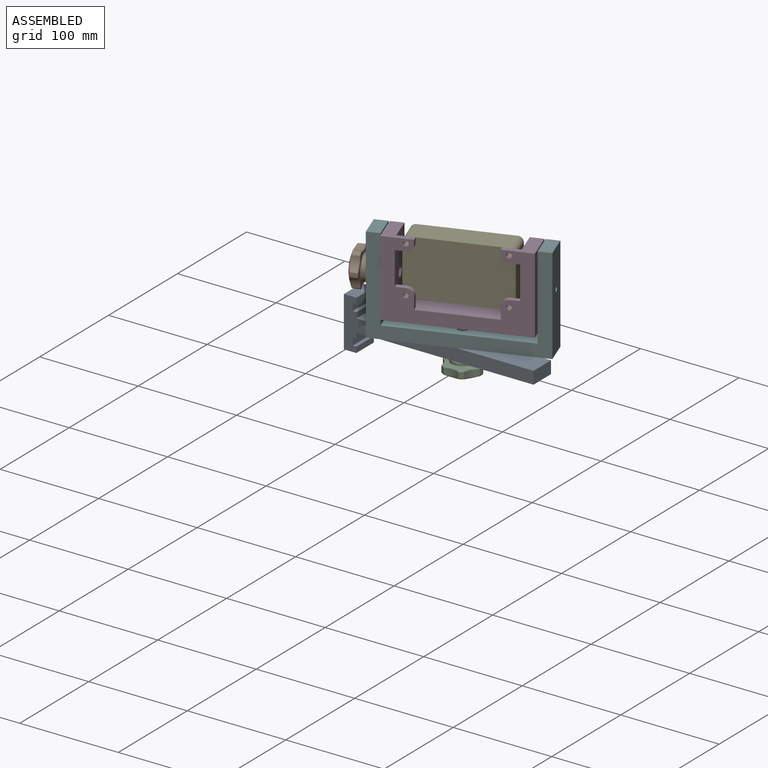
[diagram: assembled view]
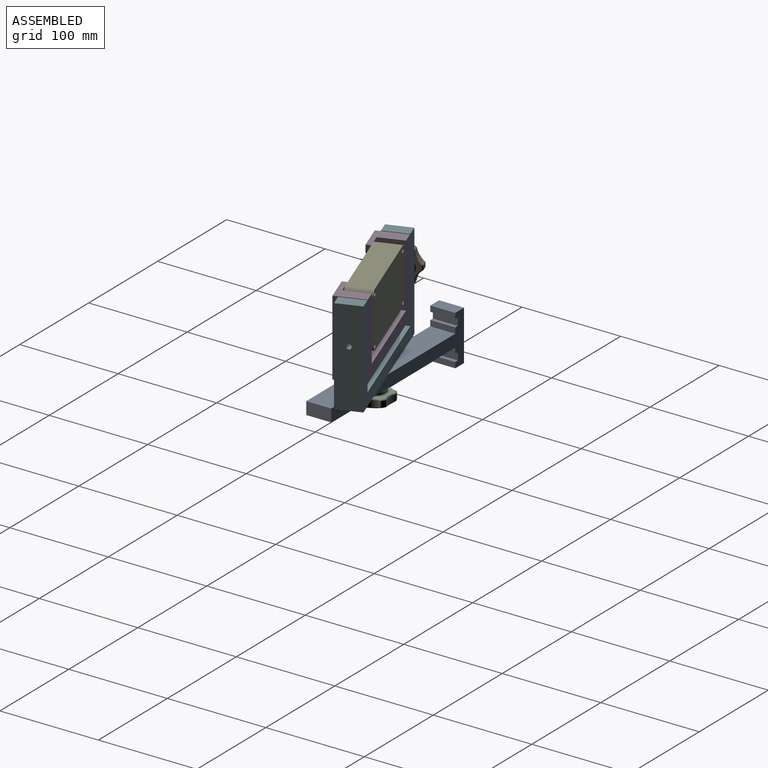
[diagram: assembled view, second angle]
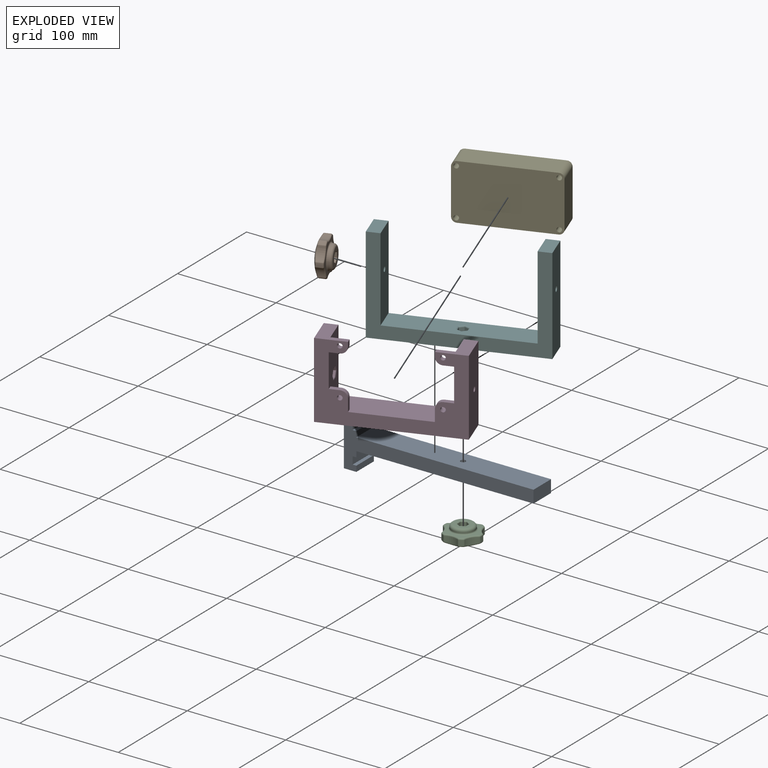
[diagram: exploded view]
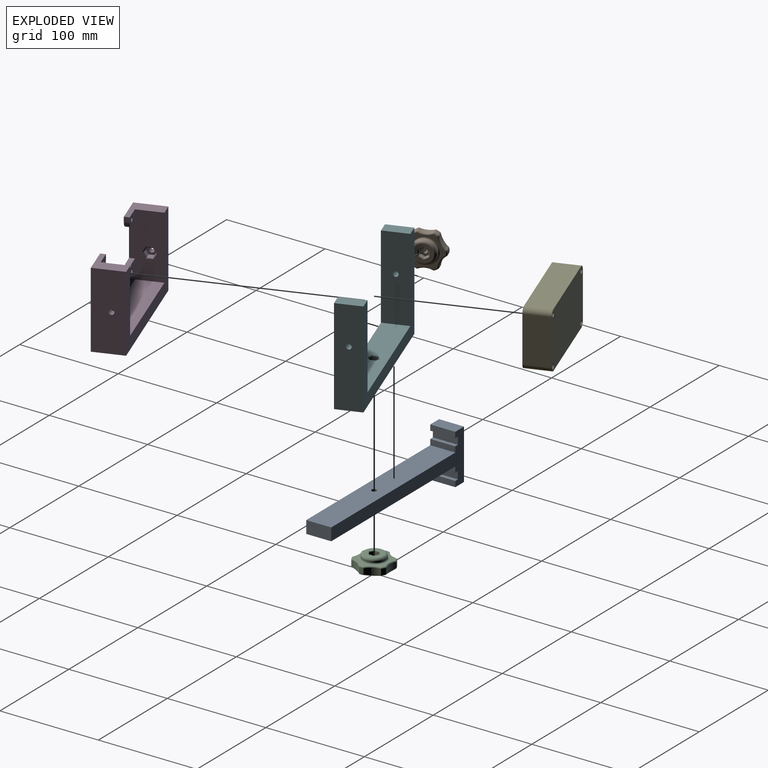
[diagram: exploded view, second angle]
ASSEMBLY  parts=6 mates=7
PART A: 19 faces, bbox 192.6x50.8x25.4 mm
  f0: plane 179.88x25.4mm, normal (0,-1,0), area 4548.6mm2, adj f1,f15,f16,f17,f18
  f1: plane 25.4x12.7mm, normal (1,0,0), area 322.6mm2, adj f0,f2,f16,f17
  f2: plane 179.88x25.4mm, normal (0,1,0), area 4548.6mm2, adj f1,f3,f16,f17,f18
  f3: plane 25.4x5.72mm, normal (1,0,0), area 145.2mm2, adj f2,f4,f16,f17
  f4: plane 25.4x3.81mm, normal (0,1,0), area 96.8mm2, adj f3,f5,f16,f17
  f5: plane 25.4x7.62mm, normal (1,0,0), area 193.5mm2, adj f4,f6,f16,f17
  f6: plane 25.4x3.81mm, normal (0,-1,0), area 96.8mm2, adj f5,f7,f16,f17
  f7: plane 25.4x5.72mm, normal (1,0,0), area 145.2mm2, adj f6,f8,f16,f17
  f8: plane 25.4x12.7mm, normal (0,1,0), area 322.6mm2, adj f7,f9,f16,f17
  f9: plane 50.8x25.4mm, normal (-1,0,0), area 1290.3mm2, adj f8,f10,f16,f17
  f10: plane 25.4x12.7mm, normal (0,-1,0), area 322.6mm2, adj f9,f11,f16,f17
  f11: plane 25.4x5.72mm, normal (1,0,0), area 145.2mm2, adj f10,f12,f16,f17
  f12: plane 25.4x3.81mm, normal (0,1,0), area 96.8mm2, adj f11,f13,f16,f17
  f13: plane 25.4x7.62mm, normal (1,0,0), area 193.5mm2, adj f12,f14,f16,f17
  f14: plane 25.4x3.81mm, normal (0,-1,0), area 96.8mm2, adj f13,f15,f16,f17
  f15: plane 25.4x5.72mm, normal (1,0,0), area 145.2mm2, adj f0,f14,f16,f17
  f16: plane 192.58x50.8mm, normal (0,0,1), area 2871.5mm2, adj f0,f1,f2,f3,f4,f5,f6,f7
  f17: plane 192.58x50.8mm, normal (0,0,-1), area 2871.5mm2, adj f0,f1,f2,f3,f4,f5,f6,f7
  f18: cylinder r=2.54mm len=12.7mm, axis (0,1,0), area 202.7mm2, adj f0,f2
PART B: 94 faces, bbox 40.3x15.2x36.6 mm
  f0: plane 5.04x4.32mm, normal (1,0,0), area 21.8mm2, adj f1,f5,f25,f29
  f1: plane 4.37x4.32mm, normal (0.5,0,-0.87), area 21.8mm2, adj f0,f2,f25,f27
  f2: plane 4.37x4.32mm, normal (-0.5,0,-0.87), area 21.8mm2, adj f1,f3,f25,f26
  f3: plane 5.04x4.32mm, normal (-1,0,0), area 21.8mm2, adj f2,f4,f25,f28
  f4: plane 4.37x4.32mm, normal (-0.5,0,0.87), area 21.8mm2, adj f3,f5,f25,f30
  f5: plane 4.37x4.32mm, normal (0.5,0,0.87), area 21.8mm2, adj f0,f4,f25,f31
  f6: cylinder r=15.88mm len=13.47mm, axis (0,1,0), area 85.2mm2, adj f78,f87,f88,f92
  f7: cylinder r=19.05mm len=5.43mm, axis (0,1,0), area 21.2mm2, adj f76,f77,f86,f87
  f8: cylinder r=15.88mm len=11.66mm, axis (0,1,0), area 85.2mm2, adj f66,f67,f75,f76
  f9: cylinder r=19.05mm len=5.43mm, axis (0,1,0), area 21.2mm2, adj f56,f57,f65,f66
  f10: cylinder r=15.88mm len=11.66mm, axis (0,1,0), area 85.2mm2, adj f46,f47,f55,f56
  f11: cylinder r=19.05mm len=5.43mm, axis (0,1,0), area 21.2mm2, adj f36,f37,f45,f46
  f12: cylinder r=15.88mm len=13.47mm, axis (0,1,0), area 85.2mm2, adj f33,f36,f39,f40
  f13: cylinder r=19.05mm len=5.43mm, axis (0,1,0), area 21.2mm2, adj f38,f39,f49,f50
  f14: cylinder r=15.88mm len=11.66mm, axis (0,1,0), area 85.2mm2, adj f48,f49,f59,f60
  f15: cylinder r=19.05mm len=5.43mm, axis (0,1,0), area 21.2mm2, adj f58,f59,f69,f70
  f16: cylinder r=15.88mm len=11.66mm, axis (0,1,0), area 85.2mm2, adj f68,f69,f80,f81
  f17: cylinder r=19.05mm len=5.43mm, axis (0,1,0), area 21.2mm2, adj f79,f80,f88,f89
  f18: plane 35.56x32.45mm, normal (0,1,0), area 299.9mm2, adj f32,f33,f37,f38,f47,f48,f57,f58
  f19: plane 22.45x22.45mm, normal (0,-1,0), area 379.3mm2, adj f24,f93
  f20: cone r=11.43mm half-angle=71.6deg, axis (0,1,0), area 445.8mm2, adj f40,f45,f50,f55,f60,f65,f70,f75
  f21: cylinder r=11.43mm len=22.86mm, axis (0,-1,0), area 91.2mm2, adj f23,f32
  f22: plane 17.78x17.78mm, normal (0,1,0), area 157.2mm2, adj f23,f26,f27,f28,f29,f30,f31
  f23: torus R=8.89mm, axis (0,-1,0), area 263.4mm2, adj f21,f22
  f24: cylinder r=2.29mm len=10.16mm, axis (0,1,0), area 145.9mm2, adj f19,f25
  f25: plane 10.08x8.73mm, normal (0,1,0), area 49.6mm2, adj f0,f1,f2,f3,f4,f5,f24
  f26: cylinder r=0.76mm len=5.51mm, axis (0.87,0,-0.5), area 6.6mm2, adj f2,f22,f27,f28
  f27: cylinder r=0.76mm len=5.51mm, axis (0.87,0,0.5), area 6.6mm2, adj f1,f22,f26,f29
  f28: cylinder r=0.76mm len=5.92mm, axis (0,0,-1), area 6.6mm2, adj f3,f22,f26,f30
  f29: cylinder r=0.76mm len=5.92mm, axis (0,0,1), area 6.6mm2, adj f0,f22,f27,f31
  f30: cylinder r=0.76mm len=5.51mm, axis (-0.87,0,-0.5), area 6.6mm2, adj f4,f22,f28,f31
  f31: cylinder r=0.76mm len=5.51mm, axis (-0.87,0,0.5), area 6.6mm2, adj f5,f22,f29,f30
  f32: torus R=12.7mm, axis (0,-1,0), area 149.1mm2, adj f18,f21
  f33: torus R=17.14mm, axis (0,-1,0), area 28.6mm2, adj f12,f18,f34,f35
  f34: sphere r=1.27mm, area 1.4mm2, adj f33,f36,f37
  f35: sphere r=1.27mm, area 1.4mm2, adj f33,f38,f39
  f36: cylinder r=1.27mm len=5.43mm, axis (0,-1,0), area 5.9mm2, adj f11,f12,f34,f41
  f37: torus R=17.78mm, axis (0,-1,0), area 7.6mm2, adj f11,f18,f34,f42
  f38: torus R=17.78mm, axis (0,-1,0), area 7.6mm2, adj f13,f18,f35,f43
  f39: cylinder r=1.27mm len=5.43mm, axis (0,-1,0), area 5.9mm2, adj f12,f13,f35,f44
  f40: bspline ~17.57x3.27mm, area 24.2mm2, adj f12,f20,f41,f44
  f41: sphere r=1.27mm, area 1.2mm2, adj f36,f40,f45
  f42: sphere r=1.27mm, area 1mm2, adj f37,f46,f47
  f43: sphere r=1.27mm, area 1mm2, adj f38,f48,f49
  f44: sphere r=1.27mm, area 0.9mm2, adj f39,f40,f50
  f45: torus R=17.78mm, axis (0,1,0), area 6.1mm2, adj f11,f20,f41,f51
  f46: cylinder r=1.27mm len=5.43mm, axis (0,-1,0), area 5.9mm2, adj f10,f11,f42,f51
  f47: torus R=17.14mm, axis (0,-1,0), area 28.6mm2, adj f10,f18,f42,f52
  f48: torus R=17.14mm, axis (0,-1,0), area 28.6mm2, adj f14,f18,f43,f53
  f49: cylinder r=1.27mm len=5.43mm, axis (0,-1,0), area 5.9mm2, adj f13,f14,f43,f54
  f50: torus R=17.78mm, axis (0,1,0), area 6.1mm2, adj f13,f20,f44,f54
  f51: sphere r=1.27mm, area 0.9mm2, adj f45,f46,f55
  f52: sphere r=1.27mm, area 1mm2, adj f47,f56,f57
  f53: sphere r=1.27mm, area 1mm2, adj f48,f58,f59
  f54: sphere r=1.27mm, area 1.1mm2, adj f49,f50,f60
  f55: bspline ~15.15x9.56mm, area 24.2mm2, adj f10,f20,f51,f61
  f56: cylinder r=1.27mm len=5.43mm, axis (0,-1,0), area 5.9mm2, adj f9,f10,f52,f61
  f57: torus R=17.78mm, axis (0,-1,0), area 7.6mm2, adj f9,f18,f52,f62
  f58: torus R=17.78mm, axis (0,-1,0), area 7.6mm2, adj f15,f18,f53,f63
  f59: cylinder r=1.27mm len=5.43mm, axis (0,-1,0), area 5.9mm2, adj f14,f15,f53,f64
  f60: bspline ~15.45x9.06mm, area 24.2mm2, adj f14,f20,f54,f64
  f61: sphere r=1.27mm, area 0.8mm2, adj f55,f56,f65
  f62: sphere r=1.27mm, area 1mm2, adj f57,f66,f67
  f63: sphere r=1.27mm, area 1.4mm2, adj f58,f68,f69
  f64: sphere r=1.27mm, area 1.1mm2, adj f59,f60,f70
  f65: torus R=17.78mm, axis (0,1,0), area 6.1mm2, adj f9,f20,f61,f71
  f66: cylinder r=1.27mm len=5.43mm, axis (0,-1,0), area 5.9mm2, adj f8,f9,f62,f71
  f67: torus R=17.14mm, axis (0,-1,0), area 28.6mm2, adj f8,f18,f62,f72
  f68: torus R=17.14mm, axis (0,-1,0), area 28.6mm2, adj f16,f18,f63,f73
  f69: cylinder r=1.27mm len=5.43mm, axis (0,-1,0), area 5.9mm2, adj f15,f16,f63,f74
  f70: torus R=17.78mm, axis (0,1,0), area 6.1mm2, adj f15,f20,f64,f74
  f71: sphere r=1.27mm, area 0.8mm2, adj f65,f66,f75
  f72: sphere r=1.27mm, area 1mm2, adj f67,f76,f77
  f73: sphere r=1.27mm, area 1.4mm2, adj f68,f79,f80
  f74: sphere r=1.27mm, area 1mm2, adj f69,f70,f81
  f75: bspline ~15.45x9.06mm, area 24.2mm2, adj f8,f20,f71,f82
  f76: cylinder r=1.27mm len=5.43mm, axis (0,-1,0), area 5.9mm2, adj f7,f8,f72,f82
  f77: torus R=17.78mm, axis (0,-1,0), area 7.6mm2, adj f7,f18,f72,f83
  f78: torus R=17.14mm, axis (0,-1,0), area 28.6mm2, adj f6,f18,f83,f84
  f79: torus R=17.78mm, axis (0,-1,0), area 7.6mm2, adj f17,f18,f73,f84
  f80: cylinder r=1.27mm len=5.43mm, axis (0,-1,0), area 5.9mm2, adj f16,f17,f73,f85
  f81: bspline ~15.15x9.56mm, area 24.2mm2, adj f16,f20,f74,f85
  f82: sphere r=1.27mm, area 0.9mm2, adj f75,f76,f86
  f83: sphere r=1.27mm, area 1.4mm2, adj f77,f78,f87
  f84: sphere r=1.27mm, area 1.4mm2, adj f78,f79,f88
  f85: sphere r=1.27mm, area 0.9mm2, adj f80,f81,f89
  f86: torus R=17.78mm, axis (0,1,0), area 6.1mm2, adj f7,f20,f82,f90
  f87: cylinder r=1.27mm len=5.43mm, axis (0,-1,0), area 5.9mm2, adj f6,f7,f83,f90
  f88: cylinder r=1.27mm len=5.43mm, axis (0,-1,0), area 5.9mm2, adj f6,f17,f84,f91
  f89: torus R=17.78mm, axis (0,1,0), area 6.1mm2, adj f17,f20,f85,f91
  f90: sphere r=1.27mm, area 0.9mm2, adj f86,f87,f92
  f91: sphere r=1.27mm, area 1.2mm2, adj f88,f89,f92
  f92: bspline ~17.57x3.27mm, area 24.2mm2, adj f6,f20,f90,f91
  f93: torus R=11.22mm, axis (0,-1,0), area 29.3mm2, adj f19,f20
PART C: same geometry as B
PART D: 58 faces, bbox 133.4x77x30.5 mm
  f0: plane 64.26x30.48mm, normal (-1,0,0), area 1693.2mm2, adj f1,f7,f8,f9,f11,f20,f21,f28
  f1: plane 108.03x30.48mm, normal (0,1,0), area 3124.5mm2, adj f0,f2,f8,f11,f12,f23,f28,f29
  f2: plane 64.26x30.48mm, normal (1,0,0), area 1693.2mm2, adj f1,f3,f8,f10,f14,f15,f28,f29
  f3: plane 30.48x29.25mm, normal (0,1,0), area 471.2mm2, adj f2,f4,f8,f10,f17,f28
  f4: plane 76.96x30.48mm, normal (-1,0,0), area 2325.5mm2, adj f3,f5,f8,f28,f31
  f5: plane 133.43x30.48mm, normal (0,-1,0), area 4066.8mm2, adj f4,f6,f8,f28
  f6: plane 76.96x30.48mm, normal (1,0,0), area 2325.5mm2, adj f5,f7,f8,f28,f30
  f7: plane 30.48x29.25mm, normal (0,1,0), area 471.2mm2, adj f0,f6,f8,f9,f18,f28
  f8: plane 133.43x76.96mm, normal (0,0,1), area 3326.8mm2, adj f0,f1,f2,f3,f4,f5,f6,f7
  f9: plane 16.55x11.49mm, normal (0,0,1), area 161mm2, adj f0,f7,f18,f19,f20,f24
  f10: plane 16.55x11.49mm, normal (0,0,1), area 161mm2, adj f2,f3,f15,f16,f17,f25
  f11: plane 19.11x16.55mm, normal (0,0,1), area 287.1mm2, adj f0,f1,f21,f22,f23,f27
  f12: plane 12.13x5.08mm, normal (1,0,0), area 61.6mm2, adj f1,f13,f28,f29
  f13: cylinder r=6.99mm len=6.99mm, axis (0,0,1), area 55.7mm2, adj f12,f14,f28,f29
  f14: plane 9.56x5.08mm, normal (0,1,0), area 48.6mm2, adj f2,f13,f28,f29
  f15: plane 9.56x5.08mm, normal (0,-1,0), area 48.6mm2, adj f2,f10,f16,f28
  f16: cylinder r=6.99mm len=6.99mm, axis (0,0,1), area 55.7mm2, adj f10,f15,f17,f28
  f17: plane 5.08x4.51mm, normal (1,0,0), area 22.9mm2, adj f3,f10,f16,f28
  f18: plane 5.08x4.51mm, normal (-1,0,0), area 22.9mm2, adj f7,f9,f19,f28
  f19: cylinder r=6.99mm len=6.99mm, axis (0,0,1), area 55.7mm2, adj f9,f18,f20,f28
  f20: plane 9.56x5.08mm, normal (0,-1,0), area 48.6mm2, adj f0,f9,f19,f28
  f21: plane 9.56x5.08mm, normal (0,1,0), area 48.6mm2, adj f0,f11,f22,f28
  f22: cylinder r=6.99mm len=6.99mm, axis (0,0,1), area 55.7mm2, adj f11,f21,f23,f28
  f23: plane 12.13x5.08mm, normal (-1,0,0), area 61.6mm2, adj f1,f11,f22,f28
  f24: cylinder r=2.44mm len=5.08mm, axis (0,0,1), area 77.8mm2, adj f9,f28
  f25: cylinder r=2.44mm len=5.08mm, axis (0,0,1), area 77.8mm2, adj f10,f28
  f26: cylinder r=2.44mm len=5.08mm, axis (0,0,1), area 77.8mm2, adj f28,f29
  f27: cylinder r=2.44mm len=5.08mm, axis (0,0,1), area 77.8mm2, adj f11,f28
  f28: plane 133.43x76.96mm, normal (0,0,-1), area 4223.1mm2, adj f0,f1,f2,f3,f4,f5,f6,f7
  f29: plane 19.11x16.55mm, normal (0,0,1), area 287.1mm2, adj f1,f2,f12,f13,f14,f26
  f30: cylinder r=2.54mm len=6.35mm, axis (1,0,0), area 101.3mm2, adj f6,f38
  f31: cylinder r=2.54mm len=6.35mm, axis (1,0,0), area 101.3mm2, adj f4,f45
  f32: plane 5.08x4.37mm, normal (0,-0.5,-0.87), area 25.6mm2, adj f33,f37,f38,f57
  f33: plane 5.08x5.04mm, normal (0,-1,0), area 25.6mm2, adj f32,f34,f38,f56
  f34: plane 5.08x4.37mm, normal (0,-0.5,0.87), area 25.6mm2, adj f33,f35,f38,f54
  f35: plane 5.08x4.37mm, normal (0,0.5,0.87), area 25.6mm2, adj f34,f36,f38,f52
  f36: plane 5.08x5.04mm, normal (0,1,0), area 25.6mm2, adj f35,f37,f38,f53
  f37: plane 5.08x4.37mm, normal (0,0.5,-0.87), area 25.6mm2, adj f32,f36,f38,f55
  f38: plane 10.08x8.73mm, normal (-1,0,0), area 45.8mm2, adj f30,f32,f33,f34,f35,f36,f37
  f39: plane 5.08x4.37mm, normal (0,-0.5,-0.87), area 25.6mm2, adj f40,f44,f45,f51
  f40: plane 5.08x5.04mm, normal (0,-1,0), area 25.6mm2, adj f39,f41,f45,f49
  f41: plane 5.08x4.37mm, normal (0,-0.5,0.87), area 25.6mm2, adj f40,f42,f45,f47
  f42: plane 5.08x4.37mm, normal (0,0.5,0.87), area 25.6mm2, adj f41,f43,f45,f46
  f43: plane 5.08x5.04mm, normal (0,1,0), area 25.6mm2, adj f42,f44,f45,f48
  f44: plane 5.08x4.37mm, normal (0,0.5,-0.87), area 25.6mm2, adj f39,f43,f45,f50
  f45: plane 10.08x8.73mm, normal (1,0,0), area 45.8mm2, adj f31,f39,f40,f41,f42,f43,f44
  f46: cylinder r=1.27mm len=6.27mm, axis (0,-0.87,0.5), area 11.1mm2, adj f2,f42,f47,f48
  f47: cylinder r=1.27mm len=6.27mm, axis (0,-0.87,-0.5), area 11.1mm2, adj f2,f41,f46,f49
  f48: cylinder r=1.27mm len=6.51mm, axis (0,0,1), area 11.1mm2, adj f2,f43,f46,f50
  f49: cylinder r=1.27mm len=6.51mm, axis (0,0,-1), area 11.1mm2, adj f2,f40,f47,f51
  f50: cylinder r=1.27mm len=6.27mm, axis (0,0.87,0.5), area 11.1mm2, adj f2,f44,f48,f51
  f51: cylinder r=1.27mm len=6.27mm, axis (0,0.87,-0.5), area 11.1mm2, adj f2,f39,f49,f50
  f52: cylinder r=1.27mm len=6.27mm, axis (0,-0.87,0.5), area 11.1mm2, adj f0,f35,f53,f54
  f53: cylinder r=1.27mm len=6.51mm, axis (0,0,1), area 11.1mm2, adj f0,f36,f52,f55
  f54: cylinder r=1.27mm len=6.27mm, axis (0,-0.87,-0.5), area 11.1mm2, adj f0,f34,f52,f56
  f55: cylinder r=1.27mm len=6.27mm, axis (0,0.87,0.5), area 11.1mm2, adj f0,f37,f53,f57
  f56: cylinder r=1.27mm len=6.51mm, axis (0,0,-1), area 11.1mm2, adj f0,f33,f54,f57
  f57: cylinder r=1.27mm len=6.27mm, axis (0,0.87,-0.5), area 11.1mm2, adj f0,f32,f55,f56
PART E: 14 faces, bbox 97.9x56.6x25.4 mm
  f0: plane 46.48x25.4mm, normal (1,0,0), area 1180.6mm2, adj f8,f9,f10,f13
  f1: plane 87.71x25.4mm, normal (0,1,0), area 2227.7mm2, adj f8,f9,f10,f11
  f2: plane 46.48x25.4mm, normal (-1,0,0), area 1180.6mm2, adj f8,f9,f11,f12
  f3: cylinder r=2.44mm len=25.4mm, axis (0,0,-1), area 389.2mm2, adj f8,f9
  f4: cylinder r=2.44mm len=25.4mm, axis (0,0,-1), area 389.2mm2, adj f8,f9
  f5: cylinder r=2.44mm len=25.4mm, axis (0,0,-1), area 389.2mm2, adj f8,f9
  f6: plane 87.71x25.4mm, normal (0,-1,0), area 2227.7mm2, adj f8,f9,f12,f13
  f7: cylinder r=2.44mm len=25.4mm, axis (0,0,-1), area 389.2mm2, adj f8,f9
  f8: plane 97.87x56.64mm, normal (0,0,1), area 5446.5mm2, adj f0,f1,f2,f3,f4,f5,f6,f7
  f9: plane 97.87x56.64mm, normal (0,0,-1), area 5446.5mm2, adj f0,f1,f2,f3,f4,f5,f6,f7
  f10: cylinder r=5.08mm len=25.4mm, axis (0,0,1), area 202.7mm2, adj f0,f1,f8,f9
  f11: cylinder r=5.08mm len=25.4mm, axis (0,0,-1), area 202.7mm2, adj f1,f2,f8,f9
  f12: cylinder r=5.08mm len=25.4mm, axis (0,0,1), area 202.7mm2, adj f2,f6,f8,f9
  f13: cylinder r=5.08mm len=25.4mm, axis (0,0,-1), area 202.7mm2, adj f0,f6,f8,f9
PART F: 26 faces, bbox 160.8x97.3x25.4 mm
  f0: plane 84.58x25.4mm, normal (1,0,0), area 2128.1mm2, adj f1,f7,f8,f9,f11
  f1: plane 25.4x12.7mm, normal (0,1,0), area 322.6mm2, adj f0,f2,f8,f9
  f2: plane 97.28x25.4mm, normal (-1,0,0), area 2450.7mm2, adj f1,f3,f8,f9,f11
  f3: plane 160.83x25.4mm, normal (0,-1,0), area 4064.7mm2, adj f2,f4,f8,f9,f19
  f4: plane 97.28x25.4mm, normal (1,0,0), area 2450.7mm2, adj f3,f5,f8,f9,f10
  f5: plane 25.4x12.7mm, normal (0,1,0), area 322.6mm2, adj f4,f6,f8,f9
  f6: plane 84.58x25.4mm, normal (-1,0,0), area 2128.1mm2, adj f5,f7,f8,f9,f10
  f7: plane 135.43x25.4mm, normal (0,1,0), area 3329.8mm2, adj f0,f6,f8,f9,f20,f21,f22,f23
  f8: plane 160.83x97.28mm, normal (0,0,1), area 4190.9mm2, adj f0,f1,f2,f3,f4,f5,f6,f7
  f9: plane 160.83x97.28mm, normal (0,0,-1), area 4190.9mm2, adj f0,f1,f2,f3,f4,f5,f6,f7
  f10: cylinder r=2.54mm len=12.7mm, axis (1,0,0), area 202.7mm2, adj f4,f6
  f11: cylinder r=2.54mm len=12.7mm, axis (1,0,0), area 202.7mm2, adj f0,f2
  f12: plane 5.08x4.37mm, normal (0.5,0,0.87), area 25.6mm2, adj f13,f17,f18,f22
  f13: plane 5.08x5.04mm, normal (1,0,0), area 25.6mm2, adj f12,f14,f18,f20
  f14: plane 5.08x4.37mm, normal (0.5,0,-0.87), area 25.6mm2, adj f13,f15,f18,f21
  f15: plane 5.08x4.37mm, normal (-0.5,0,-0.87), area 25.6mm2, adj f14,f16,f18,f23
  f16: plane 5.08x5.04mm, normal (-1,0,0), area 25.6mm2, adj f15,f17,f18,f25
  f17: plane 5.08x4.37mm, normal (-0.5,0,0.87), area 25.6mm2, adj f12,f16,f18,f24
  f18: plane 10.08x8.73mm, normal (0,1,0), area 45.8mm2, adj f12,f13,f14,f15,f16,f17,f19
  f19: cylinder r=2.54mm len=6.35mm, axis (0,1,0), area 101.3mm2, adj f3,f18
  f20: cylinder r=1.27mm len=6.51mm, axis (0,0,-1), area 11.1mm2, adj f7,f13,f21,f22
  f21: cylinder r=1.27mm len=6.27mm, axis (-0.87,0,-0.5), area 11.1mm2, adj f7,f14,f20,f23
  f22: cylinder r=1.27mm len=6.27mm, axis (0.87,0,-0.5), area 11.1mm2, adj f7,f12,f20,f24
  f23: cylinder r=1.27mm len=6.27mm, axis (-0.87,0,0.5), area 11.1mm2, adj f7,f15,f21,f25
  f24: cylinder r=1.27mm len=6.27mm, axis (0.87,0,0.5), area 11.1mm2, adj f7,f17,f22,f25
  f25: cylinder r=1.27mm len=6.51mm, axis (0,0,1), area 11.1mm2, adj f7,f16,f23,f24
PLACE A rot(axis=(1,0,0),90deg) t=(0,12.7,82.16)mm
PLACE B rot(axis=(0,0,-1),70.3deg) t=(-80.48,-28.83,71.5)mm
PLACE C rot(axis=(1,0,0),90deg) t=(0,0,-5.08)mm
PLACE D rot(axis=(0.12,-0.7,-0.7),166.1deg) t=(4.28,-11.96,81.66)mm
PLACE E rot(axis=(-0.12,0.7,-0.7),166.1deg) t=(-4.28,11.96,81.66)mm
PLACE F rot(axis=(0.12,-0.7,-0.7),166.1deg) t=(4.28,-11.96,81.66)mm
MATE cylindrical A.f18 <-> C.f20  axis (0,0,1) through (0,0,0)mm
MATE cylindrical D.f30 <-> F.f10  axis (0.94,0.34,0) through (62.8,22.5,71.5)mm
MATE fastened E.f3 <-> D.f19  axis (0.34,-0.94,0) through (-37.56,-26.95,105.47)mm
MATE planar C.f20 <-> A.f18  axis (0,0,1) through (0,0,0)mm
MATE cylindrical B.f24 <-> F.f10  axis (0.94,0.34,0) through (-80.48,-28.83,71.5)mm
MATE revolute F.f19 <-> A.f18  axis (0,0,-1) through (0,0,12.7)mm
MATE planar B.f20 <-> F.f4  axis (0.94,0.34,0) through (-75.7,-27.12,71.5)mm
